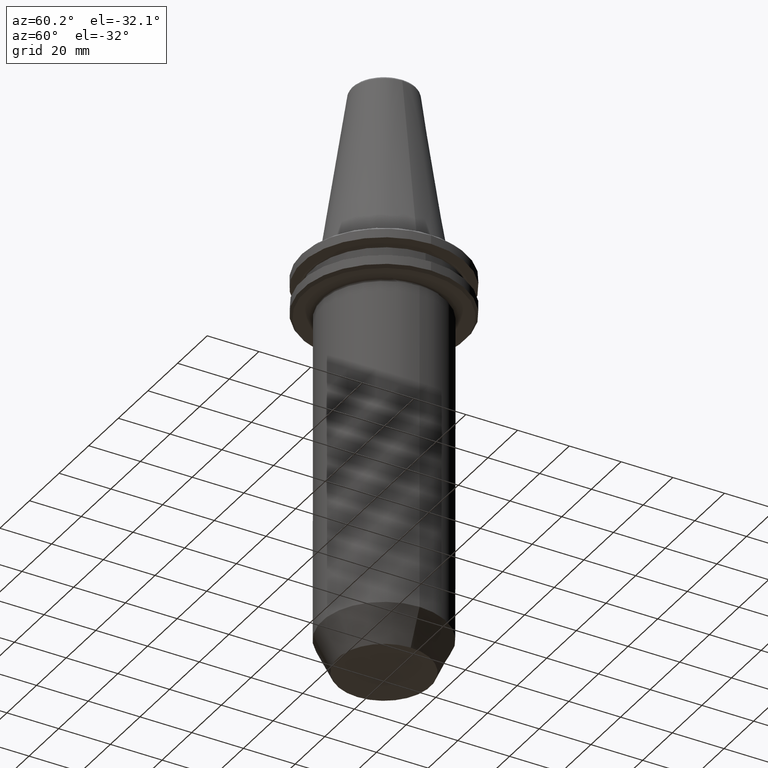
[diagram: clean part render]
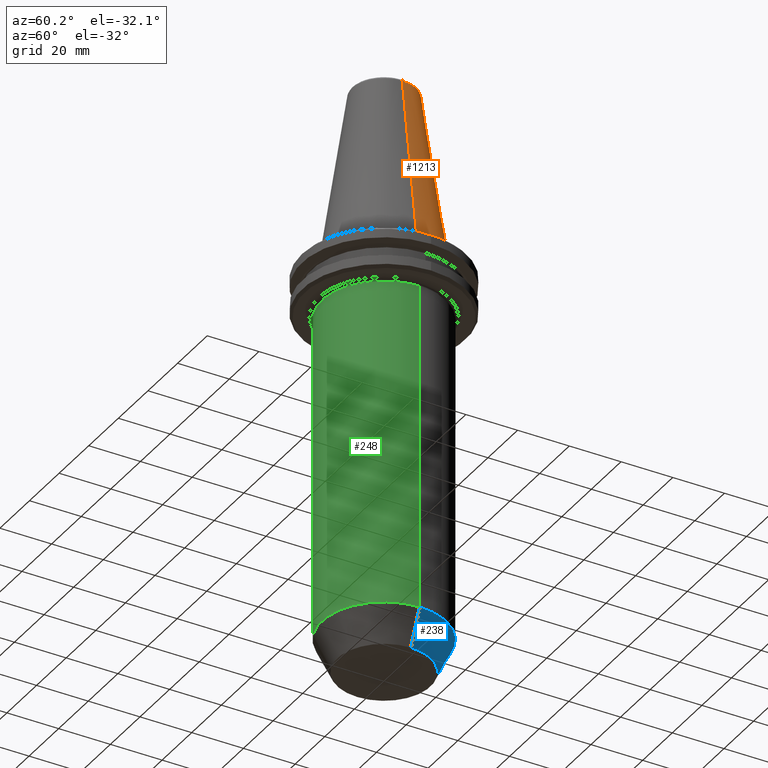
[diagram: same view with three faces highlighted in distinct colors, each labeled with its STEP entity id]
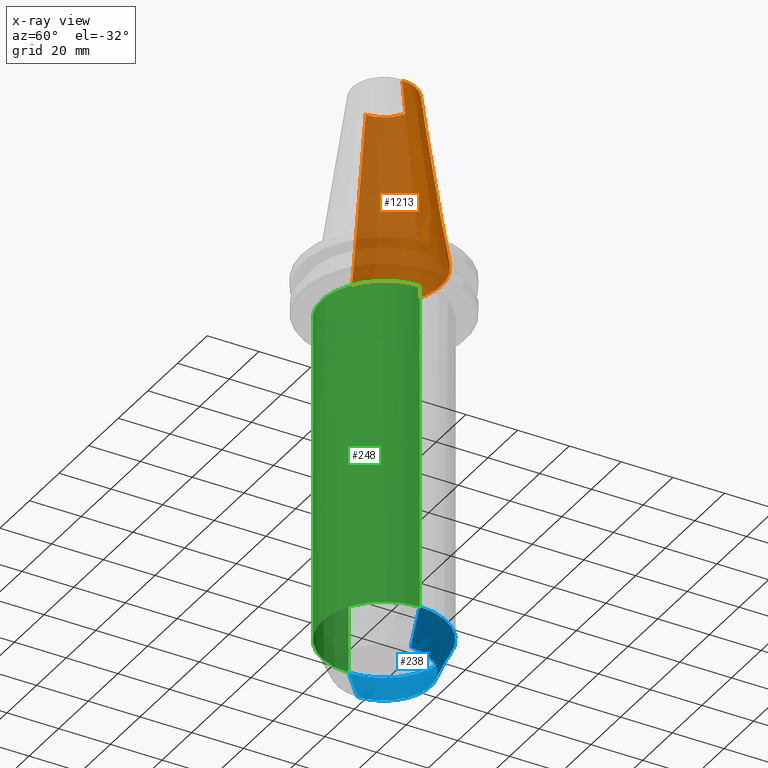
[diagram: x-ray of the same camera — body ghosted, the three highlighted faces saturated]
A machine part, auxiliary view with three faces highlighted in distinct colors.
The next image is the same camera in x-ray (body ghosted, the three faces saturated) — at least one of them is partly hidden behind the body in this view.
Their STEP definitions:

[orange] entity #1213 — the highlighted conical surface has half-angle 8.297 deg.
#33 = VERTEX_POINT ( 'NONE', #111 ) ;
#53 = CARTESIAN_POINT ( 'NONE',  ( 22.22500000000000100, 2.721777511104992800E-015, 0.0000000000000000000 ) ) ;
#67 = EDGE_CURVE ( 'NONE', #33, #1469, #1464, .T. ) ;
#91 = DIRECTION ( 'NONE',  ( 0.1443082272673070500, 1.767266086135363700E-017, -0.9895327864921743500 ) ) ;
#94 = LINE ( 'NONE', #1109, #1422 ) ;
#111 = CARTESIAN_POINT ( 'NONE',  ( 12.37469537611110800, 2.118620309691397300E-015, 67.54430822726729400 ) ) ;
#152 = FACE_OUTER_BOUND ( 'NONE', #655, .T. ) ;
#168 = ORIENTED_EDGE ( 'NONE', *, *, #798, .F. ) ;
#271 = VERTEX_POINT ( 'NONE', #924 ) ;
#377 = CARTESIAN_POINT ( 'NONE',  ( 22.22500000000000100, 2.721777511104992800E-015, 0.0000000000000000000 ) ) ;
#388 = AXIS2_PLACEMENT_3D ( 'NONE', #666, #665, #664 ) ;
#391 = CIRCLE ( 'NONE', #388, 12.37469537611110800 ) ;
#442 = VERTEX_POINT ( 'NONE', #1074 ) ;
#655 = EDGE_LOOP ( 'NONE', ( #1169, #1002, #1167, #168 ) ) ;
#664 = DIRECTION ( 'NONE',  ( -1.000000000000000000, 0.0000000000000000000, 0.0000000000000000000 ) ) ;
#665 = DIRECTION ( 'NONE',  ( 0.0000000000000000000, 0.0000000000000000000, -1.000000000000000000 ) ) ;
#666 = CARTESIAN_POINT ( 'NONE',  ( 0.0000000000000000000, 0.0000000000000000000, 67.54430822726729400 ) ) ;
#667 = DIRECTION ( 'NONE',  ( 0.0000000000000000000, 0.0000000000000000000, -1.000000000000000000 ) ) ;
#668 = CARTESIAN_POINT ( 'NONE',  ( 0.0000000000000000000, 0.0000000000000000000, 0.0000000000000000000 ) ) ;
#670 = DIRECTION ( 'NONE',  ( -1.000000000000000000, 0.0000000000000000000, 0.0000000000000000000 ) ) ;
#707 = DIRECTION ( 'NONE',  ( 1.000000000000000000, 0.0000000000000000000, 9.822541477422708000E-017 ) ) ;
#709 = DIRECTION ( 'NONE',  ( -0.0000000000000000000, -0.0000000000000000000, -1.000000000000000000 ) ) ;
#711 = CARTESIAN_POINT ( 'NONE',  ( 0.0000000000000000000, 0.0000000000000000000, 0.0000000000000000000 ) ) ;
#784 = CONICAL_SURFACE ( 'NONE', #949, 22.22500000000000100, 0.1448138465474190500 ) ;
#785 = VECTOR ( 'NONE', #91, 1000.000000000000000 ) ;
#798 = EDGE_CURVE ( 'NONE', #271, #442, #94, .T. ) ;
#924 = CARTESIAN_POINT ( 'NONE',  ( -12.37469537611110800, 0.0000000000000000000, 67.54430822726729400 ) ) ;
#949 = AXIS2_PLACEMENT_3D ( 'NONE', #668, #667, #670 ) ;
#990 = CIRCLE ( 'NONE', #1536, 22.22500000000000500 ) ;
#1002 = ORIENTED_EDGE ( 'NONE', *, *, #67, .T. ) ;
#1074 = CARTESIAN_POINT ( 'NONE',  ( -22.22500000000000100, 0.0000000000000000000, 0.0000000000000000000 ) ) ;
#1109 = CARTESIAN_POINT ( 'NONE',  ( -22.22500000000000100, 0.0000000000000000000, 0.0000000000000000000 ) ) ;
#1111 = DIRECTION ( 'NONE',  ( -0.1443082272673070500, 0.0000000000000000000, -0.9895327864921743500 ) ) ;
#1129 = EDGE_CURVE ( 'NONE', #442, #1469, #990, .T. ) ;
#1167 = ORIENTED_EDGE ( 'NONE', *, *, #1129, .F. ) ;
#1169 = ORIENTED_EDGE ( 'NONE', *, *, #1203, .T. ) ;
#1203 = EDGE_CURVE ( 'NONE', #271, #33, #391, .T. ) ;
#1213 = ADVANCED_FACE ( 'NONE', ( #152 ), #784, .T. ) ;
#1422 = VECTOR ( 'NONE', #1111, 1000.000000000000000 ) ;
#1464 = LINE ( 'NONE', #53, #785 ) ;
#1469 = VERTEX_POINT ( 'NONE', #377 ) ;
#1536 = AXIS2_PLACEMENT_3D ( 'NONE', #711, #709, #707 ) ;

[blue] entity #238 — the highlighted conical surface has half-angle 25 deg.
#7 = EDGE_CURVE ( 'NONE', #352, #925, #1082, .T. ) ;
#38 = EDGE_LOOP ( 'NONE', ( #303, #540, #1423, #818 ) ) ;
#143 = CARTESIAN_POINT ( 'NONE',  ( 24.00000000000000700, 0.0000000000000000000, -147.1329584769423500 ) ) ;
#164 = CARTESIAN_POINT ( 'NONE',  ( 0.0000000000000000000, 0.0000000000000000000, -147.1329584769423500 ) ) ;
#181 = DIRECTION ( 'NONE',  ( 0.0000000000000000000, -0.0000000000000000000, 1.000000000000000000 ) ) ;
#218 = DIRECTION ( 'NONE',  ( 0.4226182617406927800, 0.0000000000000000000, 0.9063077870366531600 ) ) ;
#228 = CARTESIAN_POINT ( 'NONE',  ( 17.99999999999998600, 0.0000000000000000000, -160.0000000000000000 ) ) ;
#238 = ADVANCED_FACE ( 'NONE', ( #1545 ), #1445, .T. ) ;
#297 = VERTEX_POINT ( 'NONE', #819 ) ;
#303 = ORIENTED_EDGE ( 'NONE', *, *, #1020, .T. ) ;
#352 = VERTEX_POINT ( 'NONE', #228 ) ;
#358 = DIRECTION ( 'NONE',  ( -0.4226182617406927800, 5.175581015019577400E-017, 0.9063077870366531600 ) ) ;
#359 = CARTESIAN_POINT ( 'NONE',  ( -24.00000000000000700, 2.939152317953648700E-015, -147.1329584769423500 ) ) ;
#486 = DIRECTION ( 'NONE',  ( 1.000000000000000000, 0.0000000000000000000, 0.0000000000000000000 ) ) ;
#487 = DIRECTION ( 'NONE',  ( 0.0000000000000000000, 0.0000000000000000000, 1.000000000000000000 ) ) ;
#488 = CARTESIAN_POINT ( 'NONE',  ( 0.0000000000000000000, 0.0000000000000000000, -147.1329584769423500 ) ) ;
#540 = ORIENTED_EDGE ( 'NONE', *, *, #1490, .T. ) ;
#700 = DIRECTION ( 'NONE',  ( 1.000000000000000000, 0.0000000000000000000, 0.0000000000000000000 ) ) ;
#715 = VERTEX_POINT ( 'NONE', #1307 ) ;
#744 = CIRCLE ( 'NONE', #1221, 24.00000000000000400 ) ;
#818 = ORIENTED_EDGE ( 'NONE', *, *, #7, .F. ) ;
#819 = CARTESIAN_POINT ( 'NONE',  ( -24.00000000000000700, 2.939152317953648700E-015, -147.1329584769423500 ) ) ;
#836 = DIRECTION ( 'NONE',  ( 1.000000000000000000, 0.0000000000000000000, 0.0000000000000000000 ) ) ;
#839 = DIRECTION ( 'NONE',  ( 0.0000000000000000000, -0.0000000000000000000, 1.000000000000000000 ) ) ;
#841 = CARTESIAN_POINT ( 'NONE',  ( 0.0000000000000000000, 0.0000000000000000000, -160.0000000000000000 ) ) ;
#845 = AXIS2_PLACEMENT_3D ( 'NONE', #841, #839, #836 ) ;
#925 = VERTEX_POINT ( 'NONE', #1079 ) ;
#970 = LINE ( 'NONE', #359, #1155 ) ;
#977 = AXIS2_PLACEMENT_3D ( 'NONE', #164, #181, #700 ) ;
#995 = VECTOR ( 'NONE', #218, 999.9999999999998900 ) ;
#1020 = EDGE_CURVE ( 'NONE', #352, #715, #1237, .T. ) ;
#1079 = CARTESIAN_POINT ( 'NONE',  ( 24.00000000000000700, 0.0000000000000000000, -147.1329584769423500 ) ) ;
#1082 = LINE ( 'NONE', #143, #995 ) ;
#1155 = VECTOR ( 'NONE', #358, 999.9999999999998900 ) ;
#1221 = AXIS2_PLACEMENT_3D ( 'NONE', #488, #487, #486 ) ;
#1237 = CIRCLE ( 'NONE', #845, 17.99999999999998600 ) ;
#1249 = EDGE_CURVE ( 'NONE', #925, #297, #744, .T. ) ;
#1307 = CARTESIAN_POINT ( 'NONE',  ( -17.99999999999998600, 2.571758278209441300E-015, -160.0000000000000000 ) ) ;
#1423 = ORIENTED_EDGE ( 'NONE', *, *, #1249, .F. ) ;
#1445 = CONICAL_SURFACE ( 'NONE', #977, 24.00000000000000700, 0.4363323129985750000 ) ;
#1490 = EDGE_CURVE ( 'NONE', #715, #297, #970, .T. ) ;
#1545 = FACE_OUTER_BOUND ( 'NONE', #38, .T. ) ;

[green] entity #248 — the highlighted cylindrical surface (partial cylindrical patch) has radius 24 mm, axis along (0, 0, 1).
#64 = ORIENTED_EDGE ( 'NONE', *, *, #1121, .T. ) ;
#83 = AXIS2_PLACEMENT_3D ( 'NONE', #725, #722, #721 ) ;
#87 = ORIENTED_EDGE ( 'NONE', *, *, #151, .T. ) ;
#89 = DIRECTION ( 'NONE',  ( 1.000000000000000000, 0.0000000000000000000, 0.0000000000000000000 ) ) ;
#93 = DIRECTION ( 'NONE',  ( 0.0000000000000000000, 0.0000000000000000000, -1.000000000000000000 ) ) ;
#104 = CIRCLE ( 'NONE', #83, 24.00000000000000400 ) ;
#108 = ORIENTED_EDGE ( 'NONE', *, *, #489, .T. ) ;
#120 = ORIENTED_EDGE ( 'NONE', *, *, #704, .T. ) ;
#151 = EDGE_CURVE ( 'NONE', #935, #154, #1492, .T. ) ;
#154 = VERTEX_POINT ( 'NONE', #873 ) ;
#167 = CYLINDRICAL_SURFACE ( 'NONE', #1252, 24.00000000000000400 ) ;
#172 = DIRECTION ( 'NONE',  ( 0.0000000000000000000, 0.0000000000000000000, 1.000000000000000000 ) ) ;
#248 = ADVANCED_FACE ( 'NONE', ( #728 ), #167, .T. ) ;
#294 = VECTOR ( 'NONE', #1312, 1000.000000000000000 ) ;
#297 = VERTEX_POINT ( 'NONE', #819 ) ;
#316 = AXIS2_PLACEMENT_3D ( 'NONE', #657, #93, #577 ) ;
#380 = CARTESIAN_POINT ( 'NONE',  ( -24.00000000000000400, 2.939152317953648300E-015, -20.10000000000000900 ) ) ;
#382 = EDGE_LOOP ( 'NONE', ( #1553, #64, #120, #87, #108 ) ) ;
#489 = EDGE_CURVE ( 'NONE', #154, #1449, #1377, .T. ) ;
#570 = VECTOR ( 'NONE', #1127, 1000.000000000000000 ) ;
#572 = CARTESIAN_POINT ( 'NONE',  ( 0.0000000000000000000, 0.0000000000000000000, 82.95681253582424100 ) ) ;
#577 = DIRECTION ( 'NONE',  ( -1.000000000000000000, 0.0000000000000000000, 0.0000000000000000000 ) ) ;
#657 = CARTESIAN_POINT ( 'NONE',  ( 0.0000000000000000000, 0.0000000000000000000, -20.10000000000000900 ) ) ;
#704 = EDGE_CURVE ( 'NONE', #925, #935, #1296, .T. ) ;
#721 = DIRECTION ( 'NONE',  ( 1.000000000000000000, 0.0000000000000000000, 0.0000000000000000000 ) ) ;
#722 = DIRECTION ( 'NONE',  ( 0.0000000000000000000, 0.0000000000000000000, 1.000000000000000000 ) ) ;
#725 = CARTESIAN_POINT ( 'NONE',  ( 0.0000000000000000000, 0.0000000000000000000, -147.1329584769423500 ) ) ;
#728 = FACE_OUTER_BOUND ( 'NONE', #382, .T. ) ;
#768 = AXIS2_PLACEMENT_3D ( 'NONE', #1556, #1540, #1539 ) ;
#780 = EDGE_CURVE ( 'NONE', #297, #1449, #930, .T. ) ;
#819 = CARTESIAN_POINT ( 'NONE',  ( -24.00000000000000700, 2.939152317953648700E-015, -147.1329584769423500 ) ) ;
#873 = CARTESIAN_POINT ( 'NONE',  ( 22.63178075185424400, -7.987646712267634900, -20.10000000000001200 ) ) ;
#925 = VERTEX_POINT ( 'NONE', #1079 ) ;
#930 = LINE ( 'NONE', #1126, #570 ) ;
#935 = VERTEX_POINT ( 'NONE', #1084 ) ;
#1079 = CARTESIAN_POINT ( 'NONE',  ( 24.00000000000000700, 0.0000000000000000000, -147.1329584769423500 ) ) ;
#1084 = CARTESIAN_POINT ( 'NONE',  ( 24.00000000000000400, 0.0000000000000000000, -20.10000000000000900 ) ) ;
#1121 = EDGE_CURVE ( 'NONE', #297, #925, #104, .T. ) ;
#1126 = CARTESIAN_POINT ( 'NONE',  ( -24.00000000000000400, 2.939152317953648300E-015, 82.95681253582424100 ) ) ;
#1127 = DIRECTION ( 'NONE',  ( 0.0000000000000000000, 0.0000000000000000000, 1.000000000000000000 ) ) ;
#1252 = AXIS2_PLACEMENT_3D ( 'NONE', #572, #172, #89 ) ;
#1296 = LINE ( 'NONE', #1314, #294 ) ;
#1312 = DIRECTION ( 'NONE',  ( 0.0000000000000000000, 0.0000000000000000000, 1.000000000000000000 ) ) ;
#1314 = CARTESIAN_POINT ( 'NONE',  ( 24.00000000000000400, 0.0000000000000000000, 82.95681253582424100 ) ) ;
#1377 = CIRCLE ( 'NONE', #768, 24.00000000000000400 ) ;
#1449 = VERTEX_POINT ( 'NONE', #380 ) ;
#1492 = CIRCLE ( 'NONE', #316, 24.00000000000000400 ) ;
#1539 = DIRECTION ( 'NONE',  ( 1.000000000000000000, 0.0000000000000000000, 0.0000000000000000000 ) ) ;
#1540 = DIRECTION ( 'NONE',  ( -0.0000000000000000000, -0.0000000000000000000, -1.000000000000000000 ) ) ;
#1553 = ORIENTED_EDGE ( 'NONE', *, *, #780, .F. ) ;
#1556 = CARTESIAN_POINT ( 'NONE',  ( 0.0000000000000000000, 0.0000000000000000000, -20.10000000000000900 ) ) ;